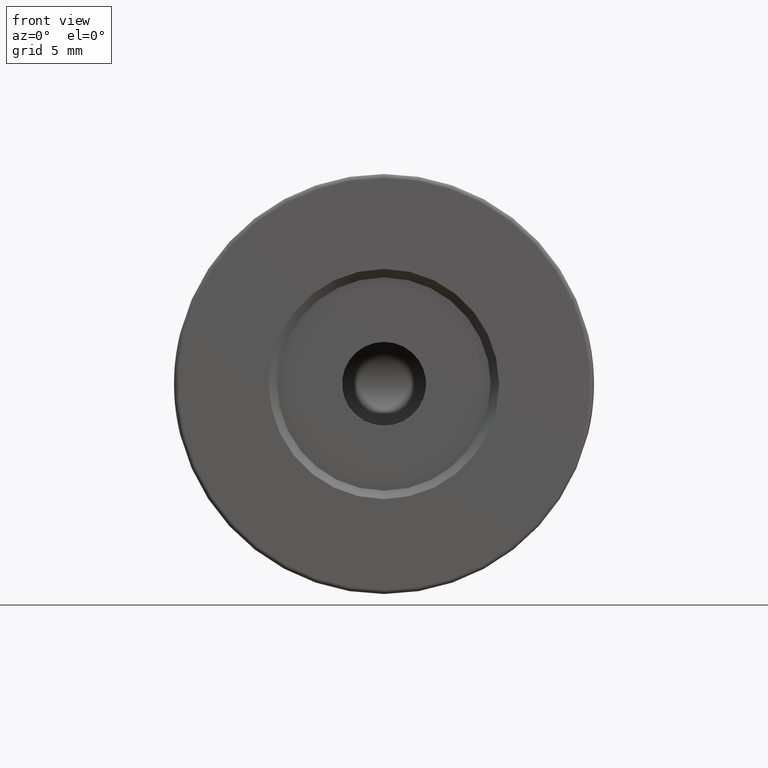
[diagram: clean part render]
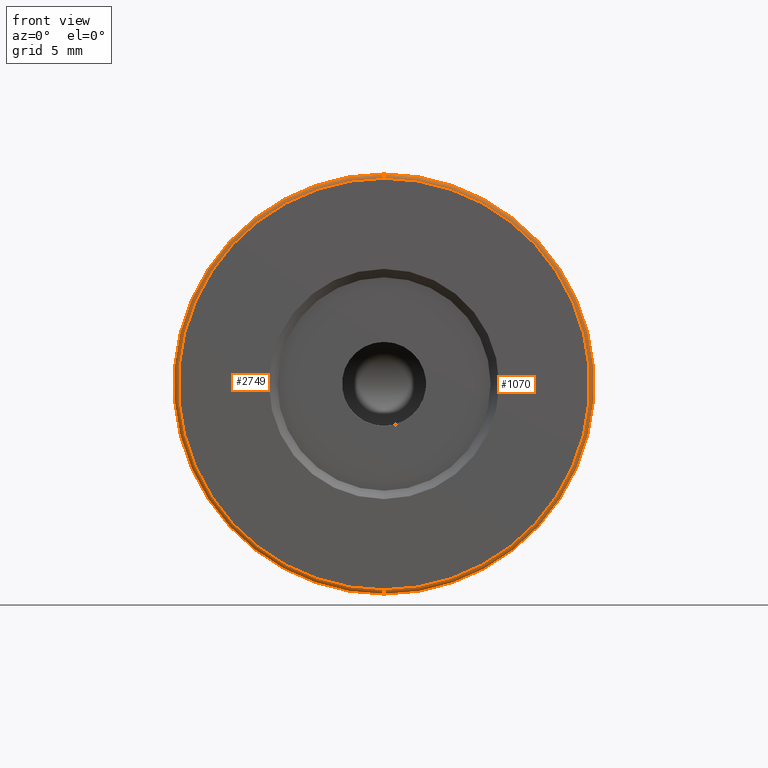
[diagram: same view with one multi-face feature highlighted, each face labeled with its STEP entity id]
A machine part, front view. The highlighted faces form ONE feature: a constant-radius fillet chain: 2 tangent blend faces with common blend radius 0.25 mm. The faces share edges in the B-rep.
Their STEP definitions:
[1] entity #2749 (Torus):
#177 = DIRECTION ( 'NONE',  ( -1.000000000000000000, 0.0000000000000000000, 0.0000000000000000000 ) ) ;
#333 = CARTESIAN_POINT ( 'NONE',  ( -22.50520183104453409, -11.05174781523061078, 62.50000000000000000 ) ) ;
#372 = CIRCLE ( 'NONE', #546, 0.2500000000000002220 ) ;
#411 = CARTESIAN_POINT ( 'NONE',  ( -22.50520183104453409, -11.05174781523061078, 50.00000000000000000 ) ) ;
#456 = DIRECTION ( 'NONE',  ( 0.0000000000000000000, 0.0000000000000000000, 1.000000000000000000 ) ) ;
#474 = CARTESIAN_POINT ( 'NONE',  ( -22.50520183104453409, -11.05174781523061078, 37.75000000000000711 ) ) ;
#522 = VERTEX_POINT ( 'NONE', #2037 ) ;
#546 = AXIS2_PLACEMENT_3D ( 'NONE', #1774, #177, #456 ) ;
#549 = AXIS2_PLACEMENT_3D ( 'NONE', #474, #727, #708 ) ;
#588 = EDGE_CURVE ( 'NONE', #522, #1870, #372, .T. ) ;
#708 = DIRECTION ( 'NONE',  ( 0.0000000000000000000, 0.0000000000000000000, -1.000000000000000000 ) ) ;
#727 = DIRECTION ( 'NONE',  ( 1.000000000000000000, -0.0000000000000000000, 1.224646799147353207E-16 ) ) ;
#733 = ORIENTED_EDGE ( 'NONE', *, *, #3006, .F. ) ;
#827 = AXIS2_PLACEMENT_3D ( 'NONE', #411, #888, #905 ) ;
#888 = DIRECTION ( 'NONE',  ( 0.0000000000000000000, 1.000000000000000000, 0.0000000000000000000 ) ) ;
#905 = DIRECTION ( 'NONE',  ( 0.0000000000000000000, 0.0000000000000000000, 1.000000000000000000 ) ) ;
#1005 = AXIS2_PLACEMENT_3D ( 'NONE', #3345, #1422, #2518 ) ;
#1056 = CIRCLE ( 'NONE', #1005, 12.24999999999999645 ) ;
#1064 = ORIENTED_EDGE ( 'NONE', *, *, #2746, .F. ) ;
#1248 = ORIENTED_EDGE ( 'NONE', *, *, #588, .T. ) ;
#1287 = ORIENTED_EDGE ( 'NONE', *, *, #2572, .F. ) ;
#1422 = DIRECTION ( 'NONE',  ( -0.0000000000000000000, -1.000000000000000000, -0.0000000000000000000 ) ) ;
#1433 = VERTEX_POINT ( 'NONE', #3381 ) ;
#1569 = CIRCLE ( 'NONE', #549, 0.2500000000000002220 ) ;
#1725 = DIRECTION ( 'NONE',  ( 0.0000000000000000000, 0.0000000000000000000, 1.000000000000000000 ) ) ;
#1774 = CARTESIAN_POINT ( 'NONE',  ( -22.50520183104453409, -11.05174781523061078, 62.25000000000000000 ) ) ;
#1870 = VERTEX_POINT ( 'NONE', #333 ) ;
#1901 = EDGE_LOOP ( 'NONE', ( #733, #1287, #1248, #1064 ) ) ;
#2007 = FACE_OUTER_BOUND ( 'NONE', #1901, .T. ) ;
#2037 = CARTESIAN_POINT ( 'NONE',  ( -22.50520183104453409, -11.30174781523061078, 62.25000000000000000 ) ) ;
#2245 = CARTESIAN_POINT ( 'NONE',  ( -22.50520183104453409, -11.05174781523061078, 50.00000000000000000 ) ) ;
#2518 = DIRECTION ( 'NONE',  ( 0.0000000000000000000, 0.0000000000000000000, 1.000000000000000000 ) ) ;
#2572 = EDGE_CURVE ( 'NONE', #522, #1433, #1056, .T. ) ;
#2746 = EDGE_CURVE ( 'NONE', #3077, #1870, #3503, .T. ) ;
#2749 = ADVANCED_FACE ( 'NONE', ( #2007 ), #3168, .T. ) ;
#2825 = AXIS2_PLACEMENT_3D ( 'NONE', #2245, #3082, #1725 ) ;
#3006 = EDGE_CURVE ( 'NONE', #1433, #3077, #1569, .T. ) ;
#3077 = VERTEX_POINT ( 'NONE', #3481 ) ;
#3082 = DIRECTION ( 'NONE',  ( 0.0000000000000000000, 1.000000000000000000, 0.0000000000000000000 ) ) ;
#3168 = TOROIDAL_SURFACE ( 'NONE', #2825, 12.25000000000000000, 0.2500000000000000000 ) ;
#3345 = CARTESIAN_POINT ( 'NONE',  ( -22.50520183104453409, -11.30174781523061078, 50.00000000000000000 ) ) ;
#3381 = CARTESIAN_POINT ( 'NONE',  ( -22.50520183104453409, -11.30174781523061078, 37.75000000000000711 ) ) ;
#3481 = CARTESIAN_POINT ( 'NONE',  ( -22.50520183104453409, -11.05174781523061078, 37.50000000000000711 ) ) ;
#3503 = CIRCLE ( 'NONE', #827, 12.49999999999999645 ) ;
[2] entity #1070 (Torus):
#177 = DIRECTION ( 'NONE',  ( -1.000000000000000000, 0.0000000000000000000, 0.0000000000000000000 ) ) ;
#207 = AXIS2_PLACEMENT_3D ( 'NONE', #1355, #1911, #803 ) ;
#221 = EDGE_CURVE ( 'NONE', #1433, #522, #1852, .T. ) ;
#333 = CARTESIAN_POINT ( 'NONE',  ( -22.50520183104453409, -11.05174781523061078, 62.50000000000000000 ) ) ;
#372 = CIRCLE ( 'NONE', #546, 0.2500000000000002220 ) ;
#456 = DIRECTION ( 'NONE',  ( 0.0000000000000000000, 0.0000000000000000000, 1.000000000000000000 ) ) ;
#474 = CARTESIAN_POINT ( 'NONE',  ( -22.50520183104453409, -11.05174781523061078, 37.75000000000000711 ) ) ;
#479 = ORIENTED_EDGE ( 'NONE', *, *, #3006, .T. ) ;
#522 = VERTEX_POINT ( 'NONE', #2037 ) ;
#546 = AXIS2_PLACEMENT_3D ( 'NONE', #1774, #177, #456 ) ;
#549 = AXIS2_PLACEMENT_3D ( 'NONE', #474, #727, #708 ) ;
#588 = EDGE_CURVE ( 'NONE', #522, #1870, #372, .T. ) ;
#633 = EDGE_LOOP ( 'NONE', ( #2796, #479, #2814, #1573 ) ) ;
#708 = DIRECTION ( 'NONE',  ( 0.0000000000000000000, 0.0000000000000000000, -1.000000000000000000 ) ) ;
#727 = DIRECTION ( 'NONE',  ( 1.000000000000000000, -0.0000000000000000000, 1.224646799147353207E-16 ) ) ;
#767 = TOROIDAL_SURFACE ( 'NONE', #207, 12.25000000000000000, 0.2500000000000000000 ) ;
#803 = DIRECTION ( 'NONE',  ( 0.0000000000000000000, 0.0000000000000000000, 1.000000000000000000 ) ) ;
#1070 = ADVANCED_FACE ( 'NONE', ( #3237 ), #767, .T. ) ;
#1355 = CARTESIAN_POINT ( 'NONE',  ( -22.50520183104453409, -11.05174781523061078, 50.00000000000000000 ) ) ;
#1433 = VERTEX_POINT ( 'NONE', #3381 ) ;
#1472 = DIRECTION ( 'NONE',  ( -0.0000000000000000000, -1.000000000000000000, -0.0000000000000000000 ) ) ;
#1569 = CIRCLE ( 'NONE', #549, 0.2500000000000002220 ) ;
#1573 = ORIENTED_EDGE ( 'NONE', *, *, #588, .F. ) ;
#1625 = AXIS2_PLACEMENT_3D ( 'NONE', #2834, #1472, #2569 ) ;
#1630 = CIRCLE ( 'NONE', #1685, 12.49999999999999645 ) ;
#1685 = AXIS2_PLACEMENT_3D ( 'NONE', #2096, #3447, #2606 ) ;
#1774 = CARTESIAN_POINT ( 'NONE',  ( -22.50520183104453409, -11.05174781523061078, 62.25000000000000000 ) ) ;
#1852 = CIRCLE ( 'NONE', #1625, 12.24999999999999645 ) ;
#1870 = VERTEX_POINT ( 'NONE', #333 ) ;
#1911 = DIRECTION ( 'NONE',  ( 0.0000000000000000000, 1.000000000000000000, 0.0000000000000000000 ) ) ;
#2037 = CARTESIAN_POINT ( 'NONE',  ( -22.50520183104453409, -11.30174781523061078, 62.25000000000000000 ) ) ;
#2096 = CARTESIAN_POINT ( 'NONE',  ( -22.50520183104453409, -11.05174781523061078, 50.00000000000000000 ) ) ;
#2569 = DIRECTION ( 'NONE',  ( 0.0000000000000000000, 0.0000000000000000000, 1.000000000000000000 ) ) ;
#2606 = DIRECTION ( 'NONE',  ( 0.0000000000000000000, 0.0000000000000000000, 1.000000000000000000 ) ) ;
#2796 = ORIENTED_EDGE ( 'NONE', *, *, #221, .F. ) ;
#2814 = ORIENTED_EDGE ( 'NONE', *, *, #2940, .F. ) ;
#2834 = CARTESIAN_POINT ( 'NONE',  ( -22.50520183104453409, -11.30174781523061078, 50.00000000000000000 ) ) ;
#2940 = EDGE_CURVE ( 'NONE', #1870, #3077, #1630, .T. ) ;
#3006 = EDGE_CURVE ( 'NONE', #1433, #3077, #1569, .T. ) ;
#3077 = VERTEX_POINT ( 'NONE', #3481 ) ;
#3237 = FACE_OUTER_BOUND ( 'NONE', #633, .T. ) ;
#3381 = CARTESIAN_POINT ( 'NONE',  ( -22.50520183104453409, -11.30174781523061078, 37.75000000000000711 ) ) ;
#3447 = DIRECTION ( 'NONE',  ( 0.0000000000000000000, 1.000000000000000000, 0.0000000000000000000 ) ) ;
#3481 = CARTESIAN_POINT ( 'NONE',  ( -22.50520183104453409, -11.05174781523061078, 37.50000000000000711 ) ) ;